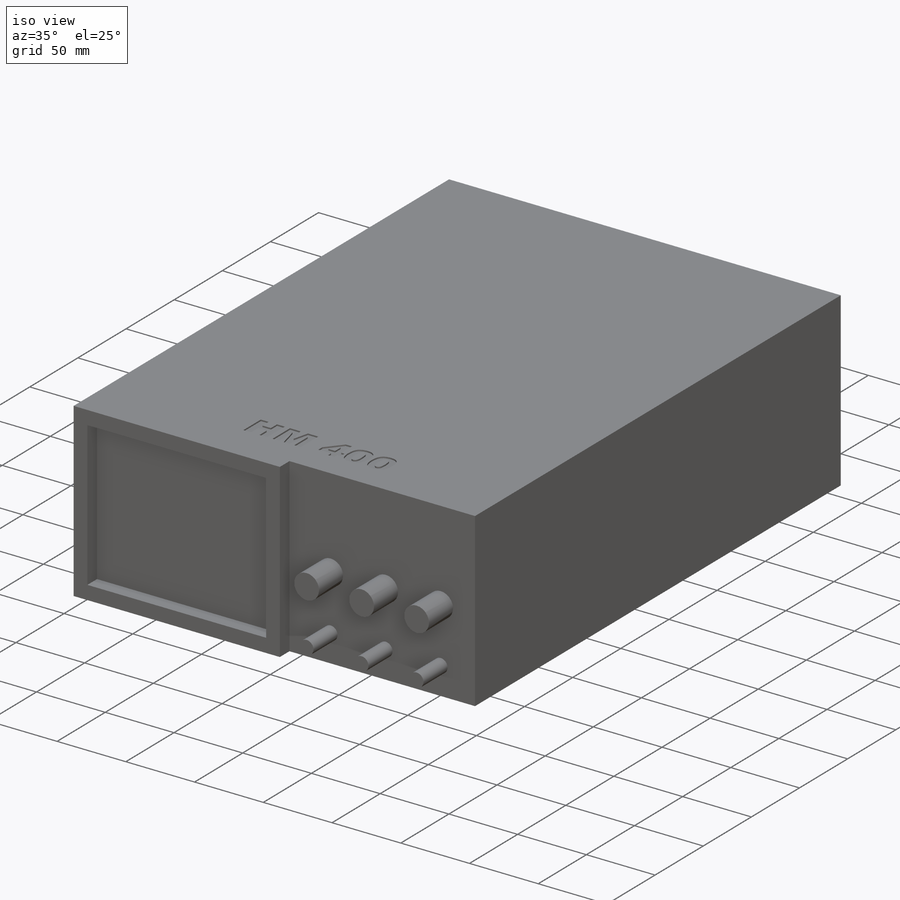
[diagram: iso view]
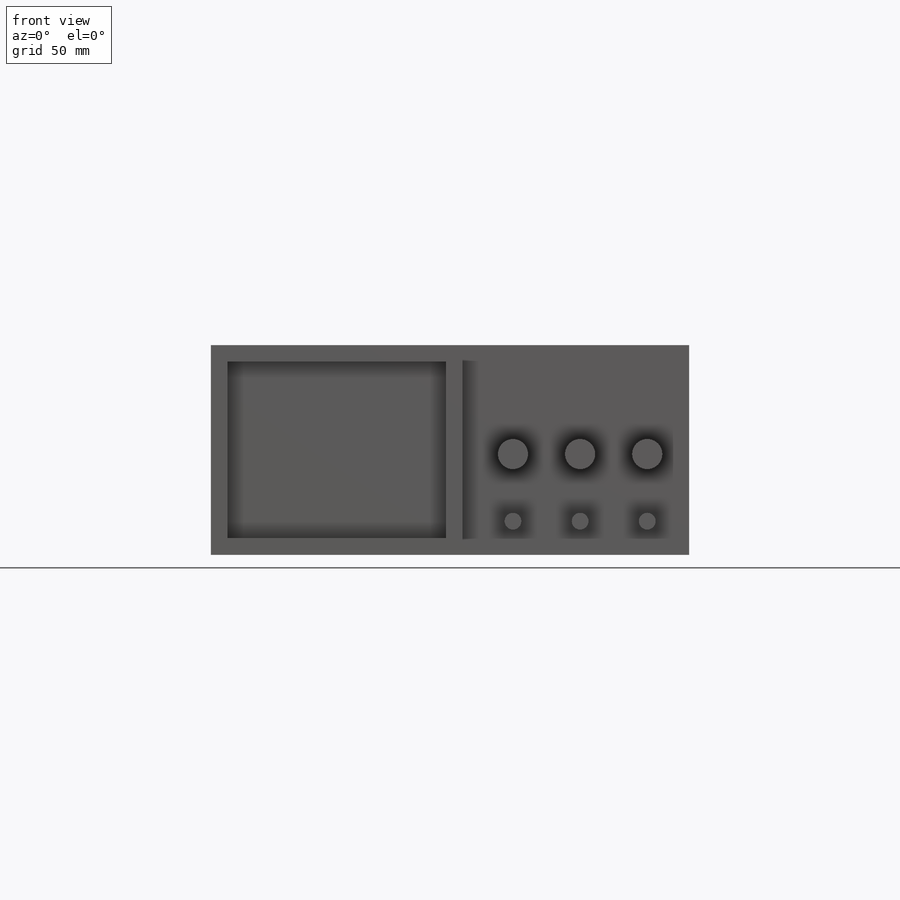
[diagram: front view]
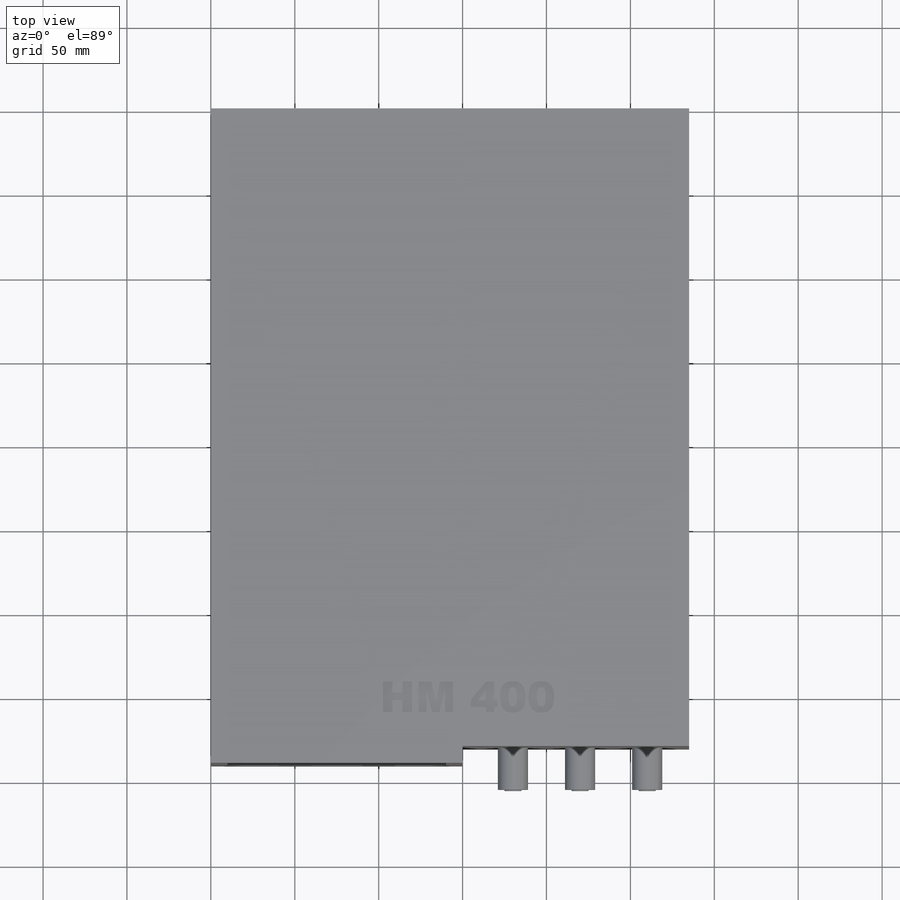
[diagram: top view]
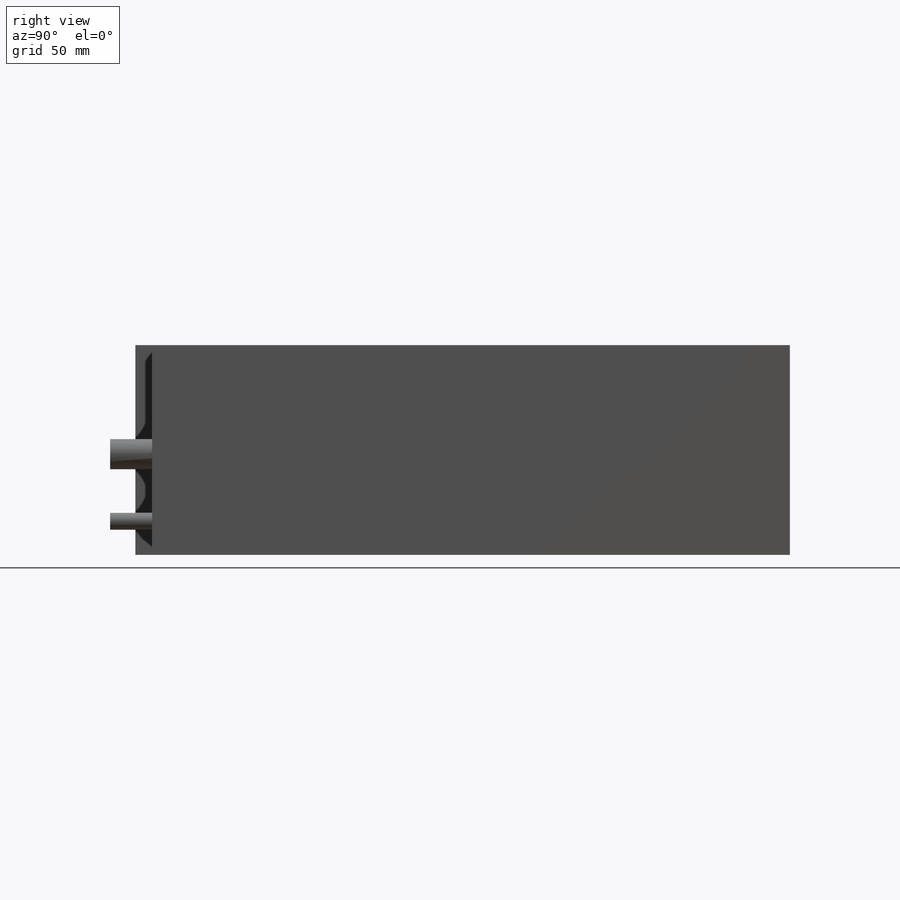
[diagram: right view]
SOLIDWORKS PART (.sldprt)
format: sldprt  version: not decoded by parser v0  size: 259,072 bytes
history: native  units: mm
features: sketch x4, plane x3, extrude x3, material x1, cut_extrude x1 (+11 scaffold rows collapsed)
feature tree (23):
  scaffold x11  (default folders/planes/origin — collapsed)
  material  "Material <nicht festgelegt>"
  plane  "Ebene vorne"
  plane  "Ebene oben"
  plane  "Ebene rechts"
  sketch  "Skizze1"  dims[D1=285.0mm D2=125.0mm]
  extrude  "Linear austragen1"  Depth=380mm
  sketch  "Skizze2"  dims[D1=10.0mm D2=10.0mm D3=10.0mm D4=130.0mm D5=10.0mm]
  extrude  "Linear austragen4"  Depth=10mm
  sketch  "Skizze3"  dims[c1.D2=10.0mm c1.D7=18.0mm c1.D8=18.0mm c1.D1=20.0mm c1.D3=60.0mm c1.D4=25.0mm c1.D5=80.0mm c1.D6=120.0mm c2.D5=40.0mm c2.D6=40.0mm]
  extrude  "Linear austragen5"  Depth=25mm
  sketch  "Skizze4"
  cut_extrude  "Linear austragen6"  Depth=1mm
decode coverage: 7 of 8 modeling features carry decoded parameters
note: suppression state not decoded; provenance and decode notes live in map.json
